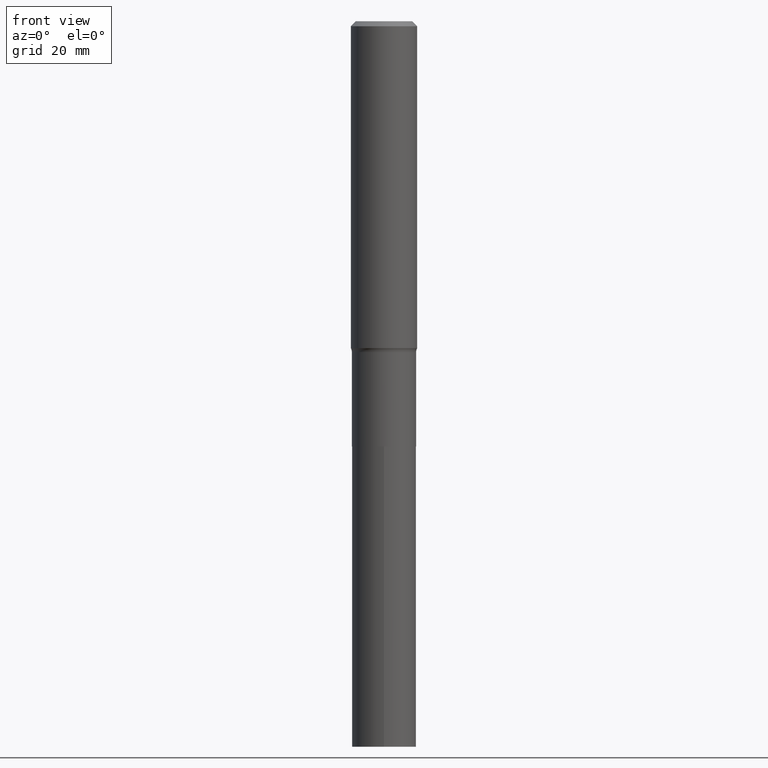
[diagram: clean part render]
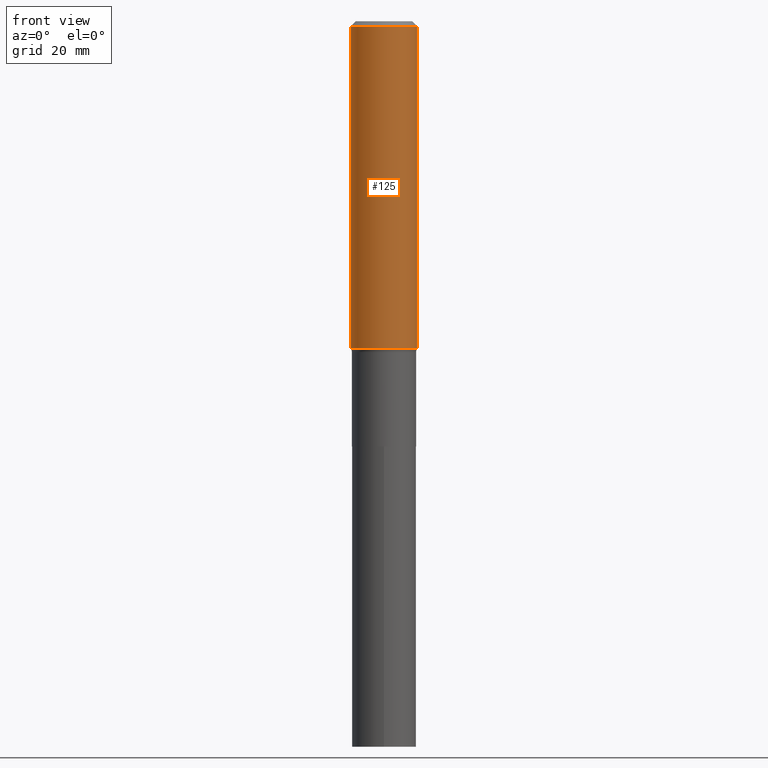
[diagram: same view with one face highlighted and labeled with its STEP entity id]
A machine part, front view. The second image highlights one B-rep face of the part: STEP entity #125.
In plain terms, the highlighted cylindrical surface (edge-blend (fillet) strip) has radius 7.9997 mm, axis along (-0, 0, 1).
Its self-contained STEP definition (entity closure, byte-faithful):
#2 = AXIS2_PLACEMENT_3D ( 'NONE', #173, #359, #240 ) ;
#16 = VERTEX_POINT ( 'NONE', #239 ) ;
#34 = CIRCLE ( 'NONE', #75, 0.3149500000000000632 ) ;
#43 = LINE ( 'NONE', #287, #148 ) ;
#47 = ORIENTED_EDGE ( 'NONE', *, *, #423, .F. ) ;
#75 = AXIS2_PLACEMENT_3D ( 'NONE', #454, #265, #271 ) ;
#78 = EDGE_CURVE ( 'NONE', #16, #189, #34, .T. ) ;
#86 = CARTESIAN_POINT ( 'NONE',  ( 7.590350070490401583E-29, -1.083700824945123372E-14, -3.103842523483722360 ) ) ;
#112 = EDGE_CURVE ( 'NONE', #210, #347, #231, .T. ) ;
#119 = CARTESIAN_POINT ( 'NONE',  ( 0.3149500000000002853, -2.199284095337291843E-15, 1.535751875536931531E-29 ) ) ;
#122 = DIRECTION ( 'NONE',  ( 1.000000000000000000, -6.982962677686267499E-15, 0.000000000000000000 ) ) ;
#125 = ADVANCED_FACE ( 'NONE', ( #370 ), #145, .T. ) ;
#136 = ORIENTED_EDGE ( 'NONE', *, *, #112, .T. ) ;
#140 = ORIENTED_EDGE ( 'NONE', *, *, #78, .F. ) ;
#145 = CYLINDRICAL_SURFACE ( 'NONE', #2, 0.3149500000000002853 ) ;
#148 = VECTOR ( 'NONE', #466, 39.37007874015748143 ) ;
#165 = DIRECTION ( 'NONE',  ( -2.445468806185136877E-29, 3.491481338843145188E-15, 1.000000000000000000 ) ) ;
#173 = CARTESIAN_POINT ( 'NONE',  ( 0.000000000000000000, 0.000000000000000000, 0.000000000000000000 ) ) ;
#189 = VERTEX_POINT ( 'NONE', #419 ) ;
#210 = VERTEX_POINT ( 'NONE', #303 ) ;
#213 = EDGE_CURVE ( 'NONE', #347, #189, #382, .T. ) ;
#231 = CIRCLE ( 'NONE', #310, 0.3149500000000003963 ) ;
#239 = CARTESIAN_POINT ( 'NONE',  ( -0.3149500000000000632, -3.263122932024328239E-15, -0.04724250000000034672 ) ) ;
#240 = DIRECTION ( 'NONE',  ( 1.000000000000000000, -6.982962677686267499E-15, 4.876176775795936353E-29 ) ) ;
#265 = DIRECTION ( 'NONE',  ( -2.445468806185136597E-29, 3.491481338843145583E-15, 1.000000000000000000 ) ) ;
#271 = DIRECTION ( 'NONE',  ( 1.000000000000000000, -6.982962677686266711E-15, 0.000000000000000000 ) ) ;
#281 = VECTOR ( 'NONE', #165, 39.37007874015748143 ) ;
#287 = CARTESIAN_POINT ( 'NONE',  ( -0.3149500000000002853, 2.237854346276437562E-15, -1.549218606675783797E-29 ) ) ;
#303 = CARTESIAN_POINT ( 'NONE',  ( -0.3149500000000003408, -8.599153903174796155E-15, -3.103842523483722360 ) ) ;
#306 = ORIENTED_EDGE ( 'NONE', *, *, #213, .T. ) ;
#310 = AXIS2_PLACEMENT_3D ( 'NONE', #86, #346, #122 ) ;
#346 = DIRECTION ( 'NONE',  ( -2.445468806185136597E-29, 3.491481338843145583E-15, 1.000000000000000000 ) ) ;
#347 = VERTEX_POINT ( 'NONE', #445 ) ;
#359 = DIRECTION ( 'NONE',  ( -2.445468806185136597E-29, 3.491481338843145583E-15, 1.000000000000000000 ) ) ;
#370 = FACE_OUTER_BOUND ( 'NONE', #424, .T. ) ;
#382 = LINE ( 'NONE', #119, #281 ) ;
#419 = CARTESIAN_POINT ( 'NONE',  ( 0.3149500000000000632, -2.364230402487588938E-15, -0.04724250000000034672 ) ) ;
#423 = EDGE_CURVE ( 'NONE', #210, #16, #43, .T. ) ;
#424 = EDGE_LOOP ( 'NONE', ( #47, #136, #306, #140 ) ) ;
#445 = CARTESIAN_POINT ( 'NONE',  ( 0.3149500000000003408, -1.303629234478852674E-14, -3.103842523483722360 ) ) ;
#454 = CARTESIAN_POINT ( 'NONE',  ( 1.155300600762021849E-30, -1.649463071502985251E-16, -0.04724250000000034672 ) ) ;
#466 = DIRECTION ( 'NONE',  ( -2.445468806185136877E-29, 3.491481338843145188E-15, 1.000000000000000000 ) ) ;